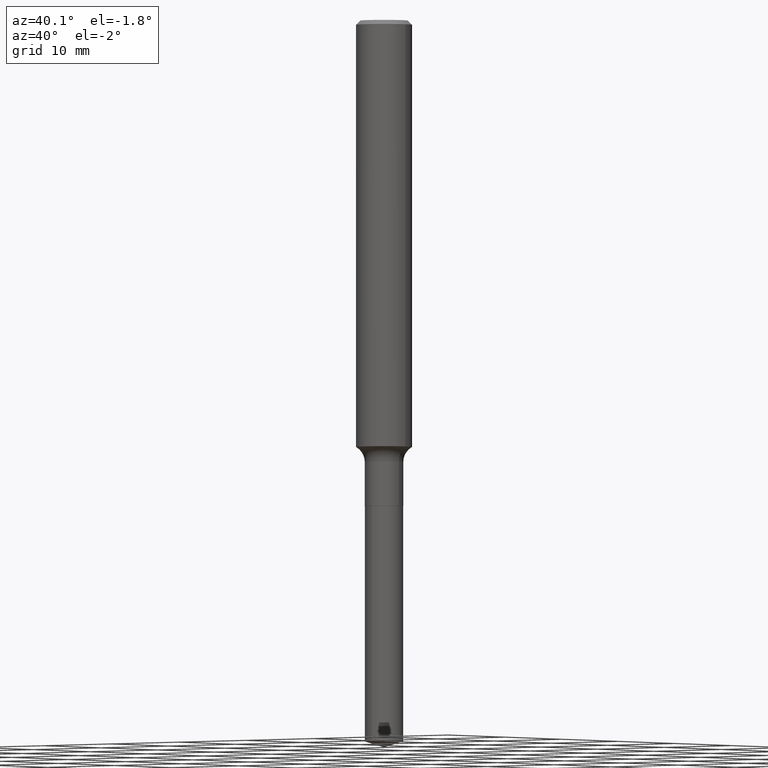
[diagram: clean part render]
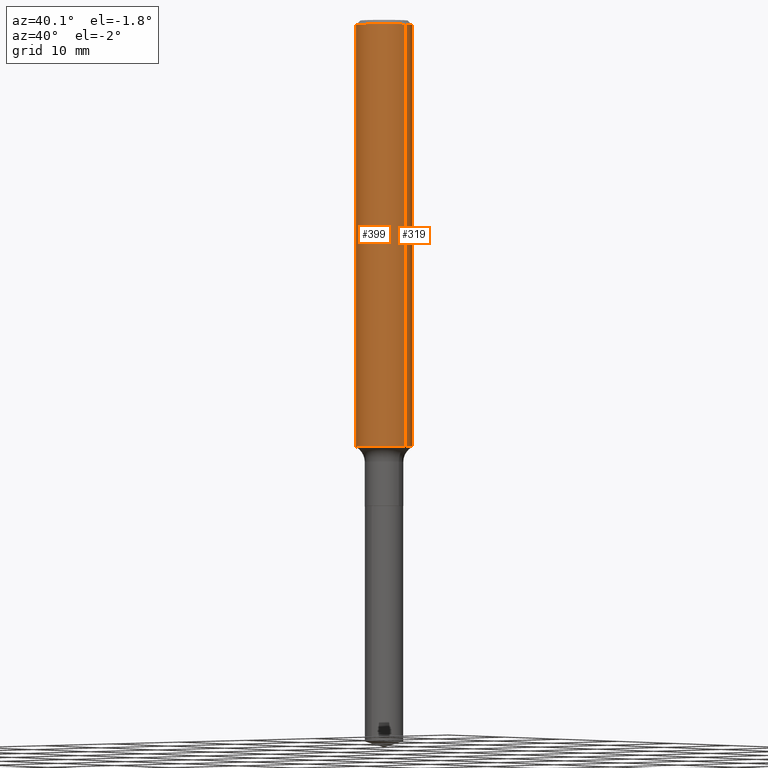
[diagram: same view with one multi-face feature highlighted, each face labeled with its STEP entity id]
A machine part, auxiliary view. The highlighted faces form ONE feature: a constant-radius fillet chain: 2 tangent blend faces with common blend radius 3.175 mm. The faces share edges in the B-rep.
Their STEP definitions:
[1] entity #319 (Cylinder):
#10 = CARTESIAN_POINT ( 'NONE',  ( 0.1250000000000001388, -8.728703347107843249E-16, 6.095220969744926748E-30 ) ) ;
#26 = DIRECTION ( 'NONE',  ( 1.000000000000000000, -6.982962677686266711E-15, 0.000000000000000000 ) ) ;
#60 = DIRECTION ( 'NONE',  ( 1.000000000000000000, -6.982962677686270655E-15, 0.000000000000000000 ) ) ;
#73 = CARTESIAN_POINT ( 'NONE',  ( -0.1250000000000003331, -5.768753835338669634E-15, -1.906621175653907319 ) ) ;
#82 = CARTESIAN_POINT ( 'NONE',  ( 0.1250000000000000000, -9.383356098140928781E-16, -0.01875000000000014155 ) ) ;
#89 = CARTESIAN_POINT ( 'NONE',  ( 0.1250000000000003331, -7.529802589749582149E-15, -1.906621175653907319 ) ) ;
#98 = CARTESIAN_POINT ( 'NONE',  ( -0.1250000000000000000, -2.473020345370925196E-15, -0.01875000000000014155 ) ) ;
#99 = VERTEX_POINT ( 'NONE', #89 ) ;
#115 = CARTESIAN_POINT ( 'NONE',  ( -0.1250000000000001388, 8.881784197001262184E-16, -6.148668862818638533E-30 ) ) ;
#123 = VECTOR ( 'NONE', #274, 39.37007874015748143 ) ;
#130 = DIRECTION ( 'NONE',  ( -2.445468806185136597E-29, 3.491481338843145583E-15, 1.000000000000000000 ) ) ;
#157 = DIRECTION ( 'NONE',  ( -2.445468806185136877E-29, 3.491481338843145188E-15, 1.000000000000000000 ) ) ;
#158 = AXIS2_PLACEMENT_3D ( 'NONE', #251, #293, #60 ) ;
#186 = CIRCLE ( 'NONE', #457, 0.1250000000000000000 ) ;
#206 = EDGE_CURVE ( 'NONE', #99, #290, #279, .T. ) ;
#211 = CYLINDRICAL_SURFACE ( 'NONE', #323, 0.1250000000000001388 ) ;
#213 = DIRECTION ( 'NONE',  ( 1.000000000000000000, -6.982962677686266711E-15, 4.876176775795935793E-29 ) ) ;
#216 = FACE_OUTER_BOUND ( 'NONE', #395, .T. ) ;
#251 = CARTESIAN_POINT ( 'NONE',  ( 4.662582610273662110E-29, -6.656932255038797233E-15, -1.906621175653907319 ) ) ;
#274 = DIRECTION ( 'NONE',  ( -2.445468806185136877E-29, 3.491481338843145188E-15, 1.000000000000000000 ) ) ;
#279 = LINE ( 'NONE', #10, #297 ) ;
#286 = EDGE_CURVE ( 'NONE', #452, #392, #453, .T. ) ;
#287 = ORIENTED_EDGE ( 'NONE', *, *, #206, .F. ) ;
#290 = VERTEX_POINT ( 'NONE', #82 ) ;
#293 = DIRECTION ( 'NONE',  ( -2.445468806185136597E-29, 3.491481338843145583E-15, 1.000000000000000000 ) ) ;
#297 = VECTOR ( 'NONE', #157, 39.37007874015748143 ) ;
#319 = ADVANCED_FACE ( 'NONE', ( #216 ), #211, .T. ) ;
#321 = EDGE_CURVE ( 'NONE', #99, #452, #358, .T. ) ;
#323 = AXIS2_PLACEMENT_3D ( 'NONE', #394, #400, #213 ) ;
#336 = ORIENTED_EDGE ( 'NONE', *, *, #383, .F. ) ;
#358 = CIRCLE ( 'NONE', #158, 0.1250000000000002776 ) ;
#383 = EDGE_CURVE ( 'NONE', #290, #392, #186, .T. ) ;
#392 = VERTEX_POINT ( 'NONE', #98 ) ;
#394 = CARTESIAN_POINT ( 'NONE',  ( 0.000000000000000000, 0.000000000000000000, 0.000000000000000000 ) ) ;
#395 = EDGE_LOOP ( 'NONE', ( #447, #437, #336, #287 ) ) ;
#400 = DIRECTION ( 'NONE',  ( -2.445468806185136597E-29, 3.491481338843145583E-15, 1.000000000000000000 ) ) ;
#437 = ORIENTED_EDGE ( 'NONE', *, *, #286, .T. ) ;
#447 = ORIENTED_EDGE ( 'NONE', *, *, #321, .T. ) ;
#452 = VERTEX_POINT ( 'NONE', #73 ) ;
#453 = LINE ( 'NONE', #115, #123 ) ;
#457 = AXIS2_PLACEMENT_3D ( 'NONE', #477, #130, #26 ) ;
#477 = CARTESIAN_POINT ( 'NONE',  ( 4.585254011597165626E-31, -6.546527510330947764E-17, -0.01875000000000014155 ) ) ;
[2] entity #399 (Cylinder):
#10 = CARTESIAN_POINT ( 'NONE',  ( 0.1250000000000001388, -8.728703347107843249E-16, 6.095220969744926748E-30 ) ) ;
#13 = DIRECTION ( 'NONE',  ( -2.445468806185136597E-29, 3.491481338843145583E-15, 1.000000000000000000 ) ) ;
#16 = DIRECTION ( 'NONE',  ( -2.445468806185136597E-29, 3.491481338843145583E-15, 1.000000000000000000 ) ) ;
#19 = DIRECTION ( 'NONE',  ( 1.000000000000000000, -6.982962677686270655E-15, 0.000000000000000000 ) ) ;
#49 = CARTESIAN_POINT ( 'NONE',  ( 4.585254011597165626E-31, -6.546527510330947764E-17, -0.01875000000000014155 ) ) ;
#73 = CARTESIAN_POINT ( 'NONE',  ( -0.1250000000000003331, -5.768753835338669634E-15, -1.906621175653907319 ) ) ;
#82 = CARTESIAN_POINT ( 'NONE',  ( 0.1250000000000000000, -9.383356098140928781E-16, -0.01875000000000014155 ) ) ;
#89 = CARTESIAN_POINT ( 'NONE',  ( 0.1250000000000003331, -7.529802589749582149E-15, -1.906621175653907319 ) ) ;
#96 = CARTESIAN_POINT ( 'NONE',  ( 0.000000000000000000, 0.000000000000000000, 0.000000000000000000 ) ) ;
#98 = CARTESIAN_POINT ( 'NONE',  ( -0.1250000000000000000, -2.473020345370925196E-15, -0.01875000000000014155 ) ) ;
#99 = VERTEX_POINT ( 'NONE', #89 ) ;
#109 = AXIS2_PLACEMENT_3D ( 'NONE', #96, #253, #365 ) ;
#114 = EDGE_LOOP ( 'NONE', ( #133, #442, #380, #181 ) ) ;
#115 = CARTESIAN_POINT ( 'NONE',  ( -0.1250000000000001388, 8.881784197001262184E-16, -6.148668862818638533E-30 ) ) ;
#123 = VECTOR ( 'NONE', #274, 39.37007874015748143 ) ;
#133 = ORIENTED_EDGE ( 'NONE', *, *, #286, .F. ) ;
#137 = CYLINDRICAL_SURFACE ( 'NONE', #109, 0.1250000000000001388 ) ;
#142 = AXIS2_PLACEMENT_3D ( 'NONE', #217, #16, #19 ) ;
#157 = DIRECTION ( 'NONE',  ( -2.445468806185136877E-29, 3.491481338843145188E-15, 1.000000000000000000 ) ) ;
#169 = DIRECTION ( 'NONE',  ( 1.000000000000000000, -6.982962677686266711E-15, 0.000000000000000000 ) ) ;
#181 = ORIENTED_EDGE ( 'NONE', *, *, #273, .F. ) ;
#206 = EDGE_CURVE ( 'NONE', #99, #290, #279, .T. ) ;
#217 = CARTESIAN_POINT ( 'NONE',  ( 4.662582610273662110E-29, -6.656932255038797233E-15, -1.906621175653907319 ) ) ;
#253 = DIRECTION ( 'NONE',  ( -2.445468806185136597E-29, 3.491481338843145583E-15, 1.000000000000000000 ) ) ;
#256 = AXIS2_PLACEMENT_3D ( 'NONE', #49, #13, #169 ) ;
#273 = EDGE_CURVE ( 'NONE', #392, #290, #331, .T. ) ;
#274 = DIRECTION ( 'NONE',  ( -2.445468806185136877E-29, 3.491481338843145188E-15, 1.000000000000000000 ) ) ;
#279 = LINE ( 'NONE', #10, #297 ) ;
#286 = EDGE_CURVE ( 'NONE', #452, #392, #453, .T. ) ;
#290 = VERTEX_POINT ( 'NONE', #82 ) ;
#297 = VECTOR ( 'NONE', #157, 39.37007874015748143 ) ;
#307 = CIRCLE ( 'NONE', #142, 0.1250000000000002776 ) ;
#331 = CIRCLE ( 'NONE', #256, 0.1250000000000000000 ) ;
#342 = EDGE_CURVE ( 'NONE', #452, #99, #307, .T. ) ;
#365 = DIRECTION ( 'NONE',  ( 1.000000000000000000, -6.982962677686266711E-15, 4.876176775795935793E-29 ) ) ;
#380 = ORIENTED_EDGE ( 'NONE', *, *, #206, .T. ) ;
#392 = VERTEX_POINT ( 'NONE', #98 ) ;
#399 = ADVANCED_FACE ( 'NONE', ( #436 ), #137, .T. ) ;
#436 = FACE_OUTER_BOUND ( 'NONE', #114, .T. ) ;
#442 = ORIENTED_EDGE ( 'NONE', *, *, #342, .T. ) ;
#452 = VERTEX_POINT ( 'NONE', #73 ) ;
#453 = LINE ( 'NONE', #115, #123 ) ;